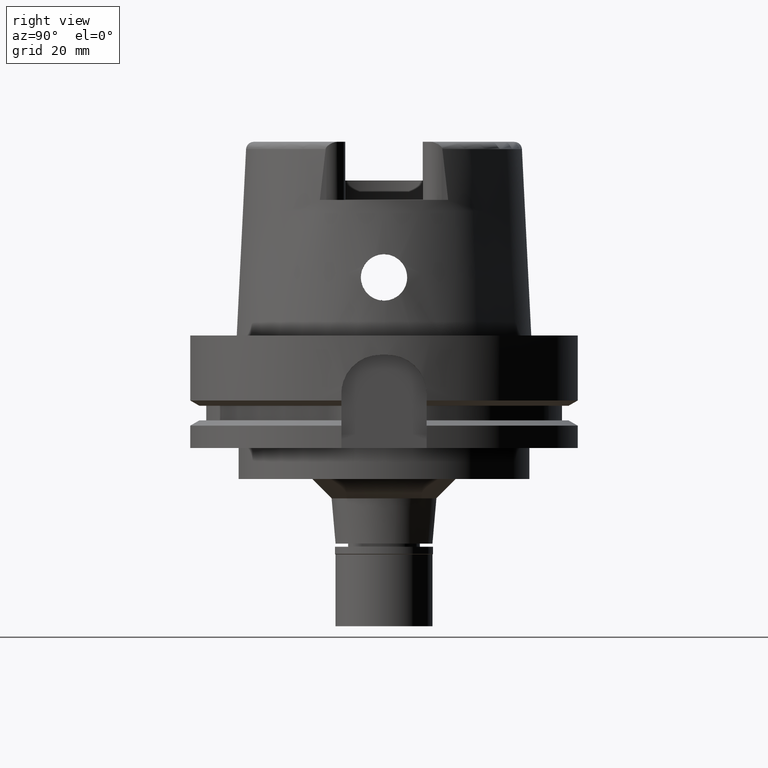
[diagram: clean part render]
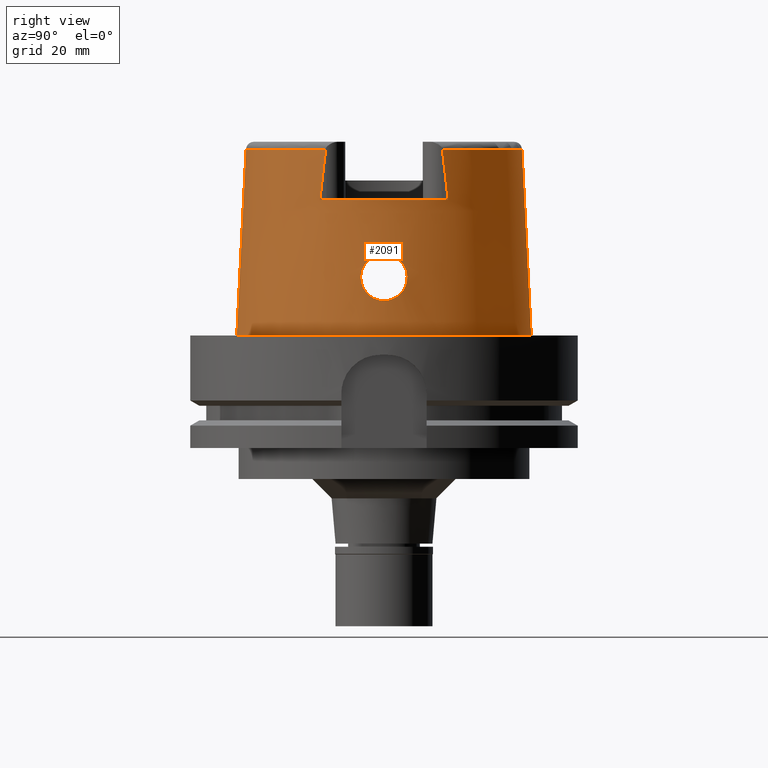
[diagram: same view with one face highlighted and labeled with its STEP entity id]
A machine part, right view. The second image highlights one B-rep face of the part: STEP entity #2091.
In plain terms, the highlighted conical surface has half-angle 2.862 deg.
Its self-contained STEP definition (entity closure, byte-faithful):
#11 = CARTESIAN_POINT ( 'NONE',  ( 36.93363220912266343, 1.522421982830703957, 20.86568823614798163 ) ) ;
#15 = EDGE_CURVE ( 'NONE', #2558, #3792, #5202, .T. ) ;
#26 = AXIS2_PLACEMENT_3D ( 'NONE', #1403, #2337, #3556 ) ;
#34 = CARTESIAN_POINT ( 'NONE',  ( 37.06626367936463851, -5.065606015297276166, 11.78425731385142328 ) ) ;
#45 = CARTESIAN_POINT ( 'NONE',  ( 36.71868864891121831, 5.559254901387802761, 17.25714961341911291 ) ) ;
#64 = CARTESIAN_POINT ( 'NONE',  ( 37.45376518577423042, -2.333079965663379607, 9.472174541642599976 ) ) ;
#74 = CARTESIAN_POINT ( 'NONE',  ( 36.95912333041570719, 5.514420613414209527, 12.63530129115588885 ) ) ;
#93 = CARTESIAN_POINT ( 'NONE',  ( 37.45126644618025580, -2.362967531736562599, 9.484820351221177503 ) ) ;
#105 = CARTESIAN_POINT ( 'NONE',  ( 36.78001657209971853, 4.459030951534494136, 19.01498710540209558 ) ) ;
#116 = AXIS2_PLACEMENT_3D ( 'NONE', #4750, #2186, #4779 ) ;
#136 = CARTESIAN_POINT ( 'NONE',  ( 36.82337584058490165, 5.928613113571710613, 14.05629653315983596 ) ) ;
#249 = DIRECTION ( 'NONE',  ( 0.0000000000000000000, 0.0000000000000000000, -1.000000000000000000 ) ) ;
#268 = CARTESIAN_POINT ( 'NONE',  ( 36.94998175923000616, -1.503990973344999703E-13, 21.00000000000000000 ) ) ;
#302 = CARTESIAN_POINT ( 'NONE',  ( 37.46533897159186921, 2.190248170270504779, 9.413952341805906343 ) ) ;
#315 = CARTESIAN_POINT ( 'NONE',  ( 36.75765343863760393, -5.998799344600148409, 15.12235183670633276 ) ) ;
#327 = CARTESIAN_POINT ( 'NONE',  ( 37.43514613400279245, 2.563790106412909608, 9.566202628577114453 ) ) ;
#328 = DIRECTION ( 'NONE',  ( 0.0000000000000000000, 0.0000000000000000000, -1.000000000000000000 ) ) ;
#342 = CARTESIAN_POINT ( 'NONE',  ( 36.79522537593648224, -4.225185952289158386, 19.26004155151759889 ) ) ;
#368 = CARTESIAN_POINT ( 'NONE',  ( 36.71597072978062926, -5.807668737151709948, 16.55669581157706105 ) ) ;
#409 = CARTESIAN_POINT ( 'NONE',  ( 37.46209156448918520, 2.231315079168445514, 9.430304088446245458 ) ) ;
#431 = CARTESIAN_POINT ( 'NONE',  ( 36.72019455944313648, -5.509082578915881712, 17.37714517520942437 ) ) ;
#444 = CARTESIAN_POINT ( 'NONE',  ( 36.89991126202629346, 2.332422418936255237, 20.52815636143702349 ) ) ;
#459 = CARTESIAN_POINT ( 'NONE',  ( 37.20621781380155113, -4.331168503731348096, 10.84764687306128295 ) ) ;
#472 = CARTESIAN_POINT ( 'NONE',  ( 36.78366853031181449, 4.402498439861827428, 19.07720843571472713 ) ) ;
#475 = EDGE_CURVE ( 'NONE', #2558, #2252, #1142, .T. ) ;
#496 = CARTESIAN_POINT ( 'NONE',  ( 37.44529135817865750, -2.432995199068156644, 9.515122137989015627 ) ) ;
#501 = CARTESIAN_POINT ( 'NONE',  ( 32.25000000000000000, -16.55285457013000183, 35.00000000000000000 ) ) ;
#508 = CARTESIAN_POINT ( 'NONE',  ( 36.74868218491153726, 4.955038268920233691, 18.38905931979483910 ) ) ;
#521 = CARTESIAN_POINT ( 'NONE',  ( 37.55000165825000380, 0.0000000000000000000, 9.000000000000000000 ) ) ;
#528 = CARTESIAN_POINT ( 'NONE',  ( 37.04582165515643766, -5.158697825950686600, 11.93558473823012456 ) ) ;
#539 = CARTESIAN_POINT ( 'NONE',  ( 36.84409336593814288, 3.435021757105638951, 19.92036898884432361 ) ) ;
#546 = CARTESIAN_POINT ( 'NONE',  ( 32.25000000000000000, 15.55558143819621542, 43.94359171039683076 ) ) ;
#557 = CARTESIAN_POINT ( 'NONE',  ( 36.90519221580581188, -5.703764412642750692, 13.13512669049519666 ) ) ;
#568 = CARTESIAN_POINT ( 'NONE',  ( 36.73128792167682377, 5.964829099450134287, 15.75765343368654570 ) ) ;
#573 = CARTESIAN_POINT ( 'NONE',  ( 32.24997259595860299, 15.06456614046549802, 48.09965096924619843 ) ) ;
#618 = VECTOR ( 'NONE', #4135, 1000.000000000000227 ) ;
#657 = CARTESIAN_POINT ( 'NONE',  ( 36.92806047408863179, -5.626638771284506291, 12.91536468764521395 ) ) ;
#747 = CARTESIAN_POINT ( 'NONE',  ( 36.73244334232246899, -5.227832377912167594, 17.95012752319874849 ) ) ;
#776 = CARTESIAN_POINT ( 'NONE',  ( 36.83144480226506090, -3.654988139005703740, 19.76230530686152065 ) ) ;
#790 = CARTESIAN_POINT ( 'NONE',  ( 37.55000165825000380, 0.0000000000000000000, 9.000000000000000000 ) ) ;
#807 = CARTESIAN_POINT ( 'NONE',  ( 36.71942483638947863, -5.533482905169627486, 17.31963883102281798 ) ) ;
#836 = CARTESIAN_POINT ( 'NONE',  ( 36.81744865108248632, -3.882461228376284268, 19.57560021671073969 ) ) ;
#878 = CARTESIAN_POINT ( 'NONE',  ( 37.06340790892218706, 5.078741949340638939, 11.79938486920679885 ) ) ;
#894 = ORIENTED_EDGE ( 'NONE', *, *, #4957, .F. ) ;
#901 = CARTESIAN_POINT ( 'NONE',  ( 37.07113662089325601, -5.042876533999392841, 11.74890877369419329 ) ) ;
#912 = CARTESIAN_POINT ( 'NONE',  ( 37.04080640710736105, 5.180684260487557147, 11.96690155462260563 ) ) ;
#915 = CARTESIAN_POINT ( 'NONE',  ( 32.25000000000000000, 16.55285457013000183, 35.00000000000000000 ) ) ;
#928 = CARTESIAN_POINT ( 'NONE',  ( 37.43992180455036589, -2.493492737195101228, 9.542482954090571567 ) ) ;
#940 = CARTESIAN_POINT ( 'NONE',  ( 36.71738286915432070, 5.614453678922129320, 17.11714514215727689 ) ) ;
#970 = CARTESIAN_POINT ( 'NONE',  ( 36.79045630253106225, 5.982353767830193902, 14.53054033894637342 ) ) ;
#975 = DIRECTION ( 'NONE',  ( 0.0000000000000000000, 0.0000000000000000000, -1.000000000000000000 ) ) ;
#989 = CARTESIAN_POINT ( 'NONE',  ( 36.98351900425925010, -5.422781580894332265, 12.42471093009268657 ) ) ;
#1001 = CARTESIAN_POINT ( 'NONE',  ( 37.22482081938770904, 4.220112609575639162, 10.73494587141025036 ) ) ;
#1131 = CARTESIAN_POINT ( 'NONE',  ( -0.002482252536761000127, -35.59494263424999616, 48.09987853799000135 ) ) ;
#1142 = CIRCLE ( 'NONE', #5006, 35.59494289391000166 ) ;
#1216 = CARTESIAN_POINT ( 'NONE',  ( 37.47167791025621852, 2.107964765286057585, 9.382088859678464843 ) ) ;
#1231 = CARTESIAN_POINT ( 'NONE',  ( 36.85140193091715588, -3.310106363146713360, 20.00433822272744422 ) ) ;
#1244 = CARTESIAN_POINT ( 'NONE',  ( 37.51959850512429284, 1.324355653975685110, 9.144763148519293949 ) ) ;
#1262 = CARTESIAN_POINT ( 'NONE',  ( 36.85061835843583822, -3.323925523284726680, 19.99516460867254963 ) ) ;
#1291 = CARTESIAN_POINT ( 'NONE',  ( 36.85935966623175375, -3.167391246512898828, 20.09638007231325929 ) ) ;
#1303 = CARTESIAN_POINT ( 'NONE',  ( 36.80169770612771174, 4.125147666657124290, 19.36142236284265650 ) ) ;
#1320 = CARTESIAN_POINT ( 'NONE',  ( 36.73177024955116821, -5.950776447743272968, 15.79073326840902958 ) ) ;
#1324 = CARTESIAN_POINT ( 'NONE',  ( 32.25000552016999222, -15.06439822059999933, 48.10004228534999271 ) ) ;
#1331 = CARTESIAN_POINT ( 'NONE',  ( 36.90901622673050753, 5.699655102975222043, 13.07708593357390114 ) ) ;
#1339 = CARTESIAN_POINT ( 'NONE',  ( 32.24997259595860299, 15.06456614046549802, 48.09965096924619843 ) ) ;
#1352 = CARTESIAN_POINT ( 'NONE',  ( 37.01624729913550738, -5.287576518567892236, 12.16253581040972698 ) ) ;
#1362 = CARTESIAN_POINT ( 'NONE',  ( 36.77647169725887011, 5.995475959671896504, 14.76249740475617322 ) ) ;
#1379 = CARTESIAN_POINT ( 'NONE',  ( 37.10058342507578999, -4.903966302775364383, 11.53737477060896310 ) ) ;
#1383 = CARTESIAN_POINT ( 'NONE',  ( 32.25000000000000000, -15.55533875125810184, 43.94468613908227894 ) ) ;
#1390 = CARTESIAN_POINT ( 'NONE',  ( 36.86753934487664708, 3.025841836681682828, 20.18494694466751227 ) ) ;
#1403 = CARTESIAN_POINT ( 'NONE',  ( 0.0000000000000000000, 0.0000000000000000000, 48.09987853799000135 ) ) ;
#1419 = CARTESIAN_POINT ( 'NONE',  ( 37.13283161740791627, 4.743749406786820444, 11.32102043494708532 ) ) ;
#1458 = EDGE_CURVE ( 'NONE', #2443, #3792, #4812, .T. ) ;
#1583 = EDGE_LOOP ( 'NONE', ( #2562, #2029 ) ) ;
#1619 = CARTESIAN_POINT ( 'NONE',  ( 32.25000552016999222, -15.06439822059999933, 48.10004228534999271 ) ) ;
#1621 = CARTESIAN_POINT ( 'NONE',  ( 37.28847205645702445, 3.802868792217108052, 10.35782043555392917 ) ) ;
#1637 = CARTESIAN_POINT ( 'NONE',  ( 36.80450490273268116, -5.971066681328927928, 14.29400181001692793 ) ) ;
#1663 = CARTESIAN_POINT ( 'NONE',  ( 36.94998175923000616, -1.503990973344999703E-13, 21.00000000000000000 ) ) ;
#1691 = CARTESIAN_POINT ( 'NONE',  ( 36.86313359689501112, -3.097383309472527824, 20.13897706543329491 ) ) ;
#1703 = CARTESIAN_POINT ( 'NONE',  ( 37.22751549134217441, 4.203546058178935674, 10.71861537577395040 ) ) ;
#1721 = CARTESIAN_POINT ( 'NONE',  ( 36.84075280117442475, -3.497229841147742047, 19.87933126260659478 ) ) ;
#1750 = CARTESIAN_POINT ( 'NONE',  ( 36.72671786818800399, -5.922211819808825162, 15.98259180939205848 ) ) ;
#1765 = CARTESIAN_POINT ( 'NONE',  ( 37.00763972867672891, 5.322157748709053671, 12.22791941054922304 ) ) ;
#1775 = CARTESIAN_POINT ( 'NONE',  ( 32.25000000000000000, 16.55285457013000183, 35.00000000000000000 ) ) ;
#1785 = CARTESIAN_POINT ( 'NONE',  ( 36.89549690117399194, -5.734725241736811974, 13.23274010388707822 ) ) ;
#1794 = CARTESIAN_POINT ( 'NONE',  ( 36.78811063004863513, 4.334011861514228237, 19.14943034224311802 ) ) ;
#1810 = CARTESIAN_POINT ( 'NONE',  ( 36.86761530054837266, -5.819384269902021067, 13.52490974048823169 ) ) ;
#1819 = CARTESIAN_POINT ( 'NONE',  ( 36.80921795986148481, 5.955693851536801198, 14.24799823532020326 ) ) ;
#1845 = CARTESIAN_POINT ( 'NONE',  ( 36.76846560145128961, 4.638968096063621260, 18.80674691052208658 ) ) ;
#1864 = EDGE_CURVE ( 'NONE', #3175, #4780, #4002, .T. ) ;
#1865 = CARTESIAN_POINT ( 'NONE',  ( 36.85063335782452754, -5.864852783053696506, 13.71878201605220760 ) ) ;
#1872 = VERTEX_POINT ( 'NONE', #521 ) ;
#1877 = CARTESIAN_POINT ( 'NONE',  ( 36.96443656765242736, 5.494368606498515994, 12.58907729257445673 ) ) ;
#1957 = CARTESIAN_POINT ( 'NONE',  ( 37.07440322339900263, -5.027576097927243026, 11.72529749771448770 ) ) ;
#2029 = ORIENTED_EDGE ( 'NONE', *, *, #3600, .F. ) ;
#2037 = CARTESIAN_POINT ( 'NONE',  ( 37.46068311763726655, 2.248898502662751486, 9.437402090658185472 ) ) ;
#2051 = CARTESIAN_POINT ( 'NONE',  ( 36.75992716028058283, -5.999579697872247763, 15.07487988781882038 ) ) ;
#2063 = DIRECTION ( 'NONE',  ( 0.0000000000000000000, 1.000000000000000000, 0.0000000000000000000 ) ) ;
#2075 = CARTESIAN_POINT ( 'NONE',  ( 36.77303724469233970, -4.553503825884407163, 18.93179029564945992 ) ) ;
#2091 = ADVANCED_FACE ( 'NONE', ( #2413, #5415 ), #4461, .T. ) ;
#2134 = CARTESIAN_POINT ( 'NONE',  ( 36.73760508957626314, -5.132522189325178452, 18.11373577851743732 ) ) ;
#2136 = ORIENTED_EDGE ( 'NONE', *, *, #475, .T. ) ;
#2163 = CARTESIAN_POINT ( 'NONE',  ( 36.79815431489202382, -4.181488795505773126, 19.30304589036198593 ) ) ;
#2170 = EDGE_LOOP ( 'NONE', ( #894, #2780, #3087, #5264, #3959, #2136, #5333, #3587 ) ) ;
#2172 = EDGE_CURVE ( 'NONE', #4821, #2252, #3616, .T. ) ;
#2175 = CARTESIAN_POINT ( 'NONE',  ( 36.71770843892101510, 5.806166051201119060, 16.52570958679601532 ) ) ;
#2186 = DIRECTION ( 'NONE',  ( 0.0000000000000000000, 0.0000000000000000000, 1.000000000000000000 ) ) ;
#2190 = CARTESIAN_POINT ( 'NONE',  ( 37.02773192500026767, -5.238623073265898711, 12.07287770662173720 ) ) ;
#2207 = CARTESIAN_POINT ( 'NONE',  ( 36.71881809149034837, 5.554517906380437964, 17.26878166945640558 ) ) ;
#2229 = CARTESIAN_POINT ( 'NONE',  ( 36.94624556771293555, -5.561877793994947972, 12.74932400736074278 ) ) ;
#2239 = CARTESIAN_POINT ( 'NONE',  ( 36.81089274197680083, 3.979569199766779253, 19.49464985097478475 ) ) ;
#2252 = VERTEX_POINT ( 'NONE', #1339 ) ;
#2263 = CARTESIAN_POINT ( 'NONE',  ( 36.96400091796579801, -5.497395544571951120, 12.59037142622155869 ) ) ;
#2273 = CARTESIAN_POINT ( 'NONE',  ( 36.88055506783032200, 2.763886986596148621, 20.32642254568974494 ) ) ;
#2291 = CARTESIAN_POINT ( 'NONE',  ( 37.27064475271989608, -3.950619873988412856, 10.46118248926763172 ) ) ;
#2303 = CARTESIAN_POINT ( 'NONE',  ( 36.71650714953373296, 5.721071497469291778, 16.81085046599240229 ) ) ;
#2337 = DIRECTION ( 'NONE',  ( 0.0000000000000000000, 0.0000000000000000000, -1.000000000000000000 ) ) ;
#2365 = B_SPLINE_CURVE_WITH_KNOTS ( 'NONE', 3,
 ( #1324, #1383, #2654, #501 ),
 .UNSPECIFIED., .F., .F.,
 ( 4, 4 ),
 ( 0.0000000000000000000, 1.000000000000000000 ),
 .UNSPECIFIED. ) ;
#2375 = CARTESIAN_POINT ( 'NONE',  ( 36.94998175922999906, 0.7283764636057390440, 21.00000000000000355 ) ) ;
#2413 = FACE_OUTER_BOUND ( 'NONE', #2170, .T. ) ;
#2443 = VERTEX_POINT ( 'NONE', #4915 ) ;
#2462 = CARTESIAN_POINT ( 'NONE',  ( 37.48373228542131841, 1.942848029906976581, 9.321713245723216801 ) ) ;
#2480 = CARTESIAN_POINT ( 'NONE',  ( 36.74699686259022968, -5.990504121878603705, 15.36027915551220602 ) ) ;
#2493 = CARTESIAN_POINT ( 'NONE',  ( 37.51009751977251483, 1.515316271329530728, 9.191114411644974780 ) ) ;
#2509 = CARTESIAN_POINT ( 'NONE',  ( 36.87046040258753266, -2.959032776675881493, 20.22068957188140459 ) ) ;
#2521 = CARTESIAN_POINT ( 'NONE',  ( 37.23005694141161825, 4.187860562909334838, 10.70323393895467667 ) ) ;
#2547 = CARTESIAN_POINT ( 'NONE',  ( 37.49299574613932151, 1.800541574305924319, 9.275676124258460220 ) ) ;
#2558 = VERTEX_POINT ( 'NONE', #2908 ) ;
#2562 = ORIENTED_EDGE ( 'NONE', *, *, #2623, .F. ) ;
#2582 = CARTESIAN_POINT ( 'NONE',  ( 1.065814103639999922E-14, -35.59494289391000166, 48.09987853799000135 ) ) ;
#2606 = CARTESIAN_POINT ( 'NONE',  ( 37.10959167827399341, 4.861615886763582139, 11.47831745141293069 ) ) ;
#2622 = CARTESIAN_POINT ( 'NONE',  ( 0.002482252536764999965, 35.59494263424999616, 48.09987853799000135 ) ) ;
#2623 = EDGE_CURVE ( 'NONE', #1872, #4182, #3033, .T. ) ;
#2624 = CARTESIAN_POINT ( 'NONE',  ( 37.19601805353671864, -4.390445328310041084, 10.90998552344615469 ) ) ;
#2635 = CARTESIAN_POINT ( 'NONE',  ( 36.78461494404670873, 5.988914658133977831, 14.62388953671449343 ) ) ;
#2650 = CARTESIAN_POINT ( 'NONE',  ( 37.21059328177076253, -4.305519365526615516, 10.82116595152367466 ) ) ;
#2654 = CARTESIAN_POINT ( 'NONE',  ( 32.25000000000000000, -16.05145952528143383, 39.57800537729894330 ) ) ;
#2665 = CARTESIAN_POINT ( 'NONE',  ( 36.87079981026467834, 5.816233586629762087, 13.47437042480084912 ) ) ;
#2689 = CARTESIAN_POINT ( 'NONE',  ( 36.99124028303436518, 5.390034592700625460, 12.36086071650830043 ) ) ;
#2719 = CARTESIAN_POINT ( 'NONE',  ( 36.76534902764718993, 5.999955236818629523, 14.96677934305014901 ) ) ;
#2780 = ORIENTED_EDGE ( 'NONE', *, *, #1864, .T. ) ;
#2806 = CARTESIAN_POINT ( 'NONE',  ( 37.12358788292917922, -4.787799278460241226, 11.37844825430384077 ) ) ;
#2908 = CARTESIAN_POINT ( 'NONE',  ( 0.0000000000000000000, 35.59494289391000166, 48.09987853799000135 ) ) ;
#2931 = CARTESIAN_POINT ( 'NONE',  ( 36.90177345254360119, -2.287703710583636418, 20.54675019041793149 ) ) ;
#2943 = CARTESIAN_POINT ( 'NONE',  ( 37.25725955453309979, 4.014426834774912578, 10.54045339591222863 ) ) ;
#2957 = CARTESIAN_POINT ( 'NONE',  ( 36.72452570252664827, -5.395325370722200198, 17.62645808792378332 ) ) ;
#2983 = CARTESIAN_POINT ( 'NONE',  ( 36.85275201431908698, -3.286174381754713547, 20.02008596694263076 ) ) ;
#3011 = CARTESIAN_POINT ( 'NONE',  ( 36.91481390917600436, -1.950704608086923697, 20.67570202813412550 ) ) ;
#3022 = CARTESIAN_POINT ( 'NONE',  ( 36.85842391940360585, 3.193799473544657985, 20.08303715857616112 ) ) ;
#3033 = B_SPLINE_CURVE_WITH_KNOTS ( 'NONE', 3,
 ( #790, #4593, #5100, #1244, #2493, #2547, #2462, #1216, #302, #409, #2037, #3851, #4247, #327, #3818, #3735, #5468, #1621, #5553, #2943, #5040, #3763, #2521, #1703, #5185, #1001, #3135, #3516, #1419, #2606, #878, #912, #1765, #2689, #4797, #1877, #74, #3939, #1331, #2665, #136, #1819, #970, #2635, #1362, #3079, #4340, #3111, #2719, #4430, #568, #3052, #2175, #2303, #3911, #940, #4372, #4768, #45, #2207, #5274, #3460, #3878, #508, #4827, #1845, #4856, #105, #472, #1794, #3486, #3575, #4003, #1303, #2239, #3547, #5241, #5214, #539, #3022, #1390, #2273, #4401, #4735, #3970, #4309, #444, #11, #2375, #268 ),
 .UNSPECIFIED., .F., .F.,
 ( 4, 2, 2, 1, 1, 1, 1, 2, 2, 2, 2, 2, 1, 1, 1, 2, 2, 2, 2, 2, 1, 1, 2, 2, 2, 2, 2, 1, 2, 2, 2, 2, 1, 1, 1, 1, 2, 2, 2, 2, 2, 1, 1, 2, 2, 2, 2, 2, 2, 1, 1, 2, 2, 4 ),
 ( 0.0000000000000000000, 0.06249999999999146516, 0.09374999999998714917, 0.1093749999999849565, 0.1171874999999838740, 0.1210937499999834160, 0.1230468749999832079, 0.1240234374999830969, 0.1249999999999829858, 0.1874999999999775457, 0.2187499999999747979, 0.2343749999999734379, 0.2421874999999728273, 0.2460937499999726052, 0.2480468749999724665, 0.2490234374999723832, 0.2499999999999722999, 0.2812499999999704126, 0.3124999999999685252, 0.3437499999999666378, 0.3593749999999656941, 0.3671874999999654166, 0.3710937499999652500, 0.3749999999999650835, 0.4374999999999654166, 0.4687499999999655276, 0.4843749999999655831, 0.4921874999999658051, 0.4960937499999659162, 0.4999999999999659162, 0.5624999999999688027, 0.5937499999999700240, 0.6093749999999702460, 0.6171874999999702460, 0.6210937499999701350, 0.6230468749999699130, 0.6240234374999696909, 0.6249999999999695799, 0.6874999999999742428, 0.7187499999999763522, 0.7343749999999772404, 0.7421874999999777955, 0.7460937499999780176, 0.7480468749999782396, 0.7499999999999783507, 0.7812499999999806821, 0.7968749999999816813, 0.8124999999999826805, 0.8437499999999849010, 0.8593749999999861222, 0.8671874999999866773, 0.8710937499999871214, 0.8749999999999874545, 1.000000000000000000 ),
 .UNSPECIFIED. ) ;
#3042 = CARTESIAN_POINT ( 'NONE',  ( 37.39624555107663895, -2.943933633570180231, 9.768575718043079448 ) ) ;
#3052 = CARTESIAN_POINT ( 'NONE',  ( 36.71999159056818485, 5.853079173732234963, 16.33408036258240514 ) ) ;
#3070 = CARTESIAN_POINT ( 'NONE',  ( 37.42103109394845717, -2.696850512874288341, 9.639437191358705803 ) ) ;
#3079 = CARTESIAN_POINT ( 'NONE',  ( 36.77255477159958019, 5.997936662433710708, 14.83144767608432346 ) ) ;
#3087 = ORIENTED_EDGE ( 'NONE', *, *, #3326, .T. ) ;
#3094 = CARTESIAN_POINT ( 'NONE',  ( 36.94542271954726687, -5.564860365504148199, 12.75670502920404203 ) ) ;
#3111 = CARTESIAN_POINT ( 'NONE',  ( 36.76646487241576722, 5.999793778901744368, 14.94530537451083596 ) ) ;
#3135 = CARTESIAN_POINT ( 'NONE',  ( 37.20148504798339673, 4.362959921170769917, 10.87657547647203593 ) ) ;
#3153 = CARTESIAN_POINT ( 'NONE',  ( 37.05508221807424007, -5.117111329586374602, 11.86623841263222090 ) ) ;
#3175 = VERTEX_POINT ( 'NONE', #1619 ) ;
#3184 = VECTOR ( 'NONE', #3893, 1000.000000000000227 ) ;
#3247 = DIRECTION ( 'NONE',  ( 0.0000000000000000000, -1.000000000000000000, 0.0000000000000000000 ) ) ;
#3278 = AXIS2_PLACEMENT_3D ( 'NONE', #4118, #249, #3247 ) ;
#3326 = EDGE_CURVE ( 'NONE', #4780, #2443, #4912, .T. ) ;
#3337 = CARTESIAN_POINT ( 'NONE',  ( 36.72630462458296563, -5.355377902969110870, 17.70708301683944441 ) ) ;
#3343 = CARTESIAN_POINT ( 'NONE',  ( 36.94998175923000616, -1.503990973344999703E-13, 21.00000000000000000 ) ) ;
#3364 = B_SPLINE_CURVE_WITH_KNOTS ( 'NONE', 3,
 ( #1663, #4664, #3811, #4639, #5091, #3838, #3011, #4726, #5546, #3418, #4694, #3392, #2931, #3367, #5570, #4237, #2509, #1691, #1291, #5116, #2983, #1231, #1262, #1721, #776, #836, #3449, #4213, #2163, #5057, #342, #5175, #2075, #5511, #2134, #747, #3337, #2957, #5143, #4298, #431, #3867, #5593, #807, #3779, #368, #1750, #1320, #4608, #2480, #4186, #315, #2051, #3753, #5482, #1637, #1865, #1810, #1785, #557, #3531, #657, #3506, #4090, #3476, #3094, #2229, #2263, #989, #1352, #2190, #528, #3153, #34, #901, #1957, #3561, #1379, #2806, #4785, #3656, #2624, #459, #2650, #4814, #4875, #2291, #4328, #5388, #3042, #3070, #3929, #928, #496, #93, #64, #4756, #4420, #3960, #5204, #5231 ),
 .UNSPECIFIED., .F., .F.,
 ( 4, 2, 2, 1, 1, 1, 1, 2, 2, 2, 2, 1, 1, 2, 2, 2, 1, 1, 1, 2, 2, 2, 2, 2, 1, 1, 2, 2, 2, 2, 1, 1, 2, 2, 2, 2, 2, 1, 1, 1, 2, 2, 2, 2, 1, 1, 2, 2, 2, 1, 1, 1, 2, 2, 2, 2, 2, 1, 1, 2, 2, 4 ),
 ( 0.0000000000000000000, 0.06249999999998595568, 0.09374999999997898903, 0.1093749999999754502, 0.1171874999999737155, 0.1210937499999728550, 0.1230468749999724942, 0.1240234374999722999, 0.1249999999999721056, 0.1562499999999694134, 0.1718749999999680533, 0.1796874999999673872, 0.1835937499999670541, 0.1855468749999669154, 0.1874999999999667766, 0.2187499999999633071, 0.2343749999999615030, 0.2421874999999604205, 0.2460937499999598377, 0.2480468749999596711, 0.2499999999999595324, 0.3124999999999449884, 0.3437499999999376610, 0.3593749999999339972, 0.3671874999999321654, 0.3710937499999311662, 0.3730468749999309441, 0.3749999999999307221, 0.4374999999999300004, 0.4687499999999298894, 0.4843749999999300004, 0.4921874999999301115, 0.4960937499999301670, 0.4999999999999301670, 0.5624999999999280575, 0.5937499999999270583, 0.6093749999999267253, 0.6171874999999266143, 0.6210937499999265032, 0.6230468749999266143, 0.6240234374999266143, 0.6249999999999266143, 0.6562499999999291678, 0.6718749999999302780, 0.6796874999999308331, 0.6835937499999311662, 0.6855468749999314992, 0.6874999999999318323, 0.7187499999999371614, 0.7343749999999398259, 0.7421874999999411582, 0.7460937499999419353, 0.7480468749999423794, 0.7499999999999428235, 0.8124999999999560352, 0.8437499999999626965, 0.8593749999999660272, 0.8671874999999676925, 0.8710937499999685807, 0.8730468749999690248, 0.8749999999999694689, 1.000000000000000000 ),
 .UNSPECIFIED. ) ;
#3367 = CARTESIAN_POINT ( 'NONE',  ( 36.89534651267749865, -2.443032981843361817, 20.48253178602988456 ) ) ;
#3392 = CARTESIAN_POINT ( 'NONE',  ( 36.90208191059435450, -2.280224176207230169, 20.54983072517959997 ) ) ;
#3418 = CARTESIAN_POINT ( 'NONE',  ( 36.90332960509533677, -2.249750191693839163, 20.56227715081001861 ) ) ;
#3449 = CARTESIAN_POINT ( 'NONE',  ( 36.81044203728659880, -3.993907960193134876, 19.47945788895431107 ) ) ;
#3460 = CARTESIAN_POINT ( 'NONE',  ( 36.72238945086053974, 5.428360971623982678, 17.57583175883529947 ) ) ;
#3476 = CARTESIAN_POINT ( 'NONE',  ( 36.94406653493074089, -5.569762583942237555, 12.76890431131371884 ) ) ;
#3486 = CARTESIAN_POINT ( 'NONE',  ( 36.79005327604067332, 4.304112747035613751, 19.18028941485433592 ) ) ;
#3506 = CARTESIAN_POINT ( 'NONE',  ( 36.93733422466240768, -5.593919296386983930, 12.82991491117913441 ) ) ;
#3516 = CARTESIAN_POINT ( 'NONE',  ( 37.17870291114176950, 4.494775676386168151, 11.02067333667685389 ) ) ;
#3531 = CARTESIAN_POINT ( 'NONE',  ( 36.92033735938856154, -5.653058042732282296, 12.98863106334064632 ) ) ;
#3547 = CARTESIAN_POINT ( 'NONE',  ( 36.82494186683332060, 3.751899682974277006, 19.68326390923547109 ) ) ;
#3556 = DIRECTION ( 'NONE',  ( 0.9060280460804950309, -0.4232176505245974218, 0.0000000000000000000 ) ) ;
#3561 = CARTESIAN_POINT ( 'NONE',  ( 37.07626637332585773, -5.018809087915384382, 11.71188407280238053 ) ) ;
#3575 = CARTESIAN_POINT ( 'NONE',  ( 36.79135701536026204, 4.284057727511431324, 19.20083985870530086 ) ) ;
#3580 = DIRECTION ( 'NONE',  ( 0.8896561898442558736, 0.4566309931134779343, 0.0000000000000000000 ) ) ;
#3587 = ORIENTED_EDGE ( 'NONE', *, *, #4052, .T. ) ;
#3600 = EDGE_CURVE ( 'NONE', #4182, #1872, #3364, .T. ) ;
#3616 = B_SPLINE_CURVE_WITH_KNOTS ( 'NONE', 3,
 ( #1775, #5220, #546, #573 ),
 .UNSPECIFIED., .F., .F.,
 ( 4, 4 ),
 ( 0.0000000000000000000, 1.000000000000000000 ),
 .UNSPECIFIED. ) ;
#3656 = CARTESIAN_POINT ( 'NONE',  ( 37.17565719299398097, -4.506687492948773688, 11.03683390175013379 ) ) ;
#3735 = CARTESIAN_POINT ( 'NONE',  ( 37.34509692687669258, 3.379918949133818629, 10.03867942837833915 ) ) ;
#3753 = CARTESIAN_POINT ( 'NONE',  ( 36.76115066481344229, -5.999834486749699103, 15.04988775196836492 ) ) ;
#3763 = CARTESIAN_POINT ( 'NONE',  ( 37.23594734222407254, 4.151207461032393020, 10.66768411654290638 ) ) ;
#3773 = VERTEX_POINT ( 'NONE', #4739 ) ;
#3779 = CARTESIAN_POINT ( 'NONE',  ( 36.71468597841860060, -5.692728770439267727, 16.93752010990252899 ) ) ;
#3792 = VERTEX_POINT ( 'NONE', #4346 ) ;
#3811 = CARTESIAN_POINT ( 'NONE',  ( 36.94594817069334169, -0.7394426283799175881, 20.96715299579523872 ) ) ;
#3818 = CARTESIAN_POINT ( 'NONE',  ( 37.40376655789496851, 2.882511147975072241, 9.723131122508357649 ) ) ;
#3838 = CARTESIAN_POINT ( 'NONE',  ( 36.91972984520506884, -1.804143824991490952, 20.72323490851377414 ) ) ;
#3851 = CARTESIAN_POINT ( 'NONE',  ( 37.45974044174689510, 2.260617005423132486, 9.442154128523851497 ) ) ;
#3867 = CARTESIAN_POINT ( 'NONE',  ( 36.71979060403115369, -5.521715252286732323, 17.34750410216387451 ) ) ;
#3878 = CARTESIAN_POINT ( 'NONE',  ( 36.73025172467523447, 5.269838896868245470, 17.89504875248475813 ) ) ;
#3893 = DIRECTION ( 'NONE',  ( -5.154182075159067383E-05, 0.04993927430816067631, -0.9987522546783135224 ) ) ;
#3897 = CIRCLE ( 'NONE', #4175, 36.24995854370000359 ) ;
#3911 = CARTESIAN_POINT ( 'NONE',  ( 36.71646236436099997, 5.674845435232372282, 16.95284387629023470 ) ) ;
#3929 = CARTESIAN_POINT ( 'NONE',  ( 37.42885196445791252, -2.615053792832171986, 9.599121644774735174 ) ) ;
#3939 = CARTESIAN_POINT ( 'NONE',  ( 36.95663413319717705, 5.523723643922099136, 12.65709698151792928 ) ) ;
#3959 = ORIENTED_EDGE ( 'NONE', *, *, #15, .F. ) ;
#3960 = CARTESIAN_POINT ( 'NONE',  ( 37.51901730773144550, -1.536513078944951705, 9.142535336822906089 ) ) ;
#3970 = CARTESIAN_POINT ( 'NONE',  ( 36.89699857104947256, 2.401089717501679655, 20.49867333459450336 ) ) ;
#4002 = CIRCLE ( 'NONE', #26, 35.59494289391000166 ) ;
#4003 = CARTESIAN_POINT ( 'NONE',  ( 36.79210971838841715, 4.272485975770432098, 19.21260196766942130 ) ) ;
#4052 = EDGE_CURVE ( 'NONE', #4821, #3773, #3897, .T. ) ;
#4090 = CARTESIAN_POINT ( 'NONE',  ( 36.94203696247185320, -5.577081572622533123, 12.78720470289137801 ) ) ;
#4118 = CARTESIAN_POINT ( 'NONE',  ( 0.0000000000000000000, 0.0000000000000000000, 24.04993926899999934 ) ) ;
#4135 = DIRECTION ( 'NONE',  ( 5.154182075151068004E-05, -0.04993927430816067631, -0.9987522546783135224 ) ) ;
#4175 = AXIS2_PLACEMENT_3D ( 'NONE', #5306, #975, #3580 ) ;
#4182 = VERTEX_POINT ( 'NONE', #3343 ) ;
#4186 = CARTESIAN_POINT ( 'NONE',  ( 36.75431176251193932, -5.997205141556125163, 15.19361812813500556 ) ) ;
#4198 = CARTESIAN_POINT ( 'NONE',  ( 0.0000000000000000000, 0.0000000000000000000, 48.09987853799000135 ) ) ;
#4213 = CARTESIAN_POINT ( 'NONE',  ( 36.80225271266657217, -4.119687560050126152, 19.36261212314723679 ) ) ;
#4237 = CARTESIAN_POINT ( 'NONE',  ( 36.87505019887051816, -2.869024638896019219, 20.27052323375179910 ) ) ;
#4247 = CARTESIAN_POINT ( 'NONE',  ( 37.45916166863649721, 2.267775735124466063, 9.445072689271142963 ) ) ;
#4298 = CARTESIAN_POINT ( 'NONE',  ( 36.72122483552421812, -5.478848419131719716, 17.44653103901095292 ) ) ;
#4309 = CARTESIAN_POINT ( 'NONE',  ( 36.89897611209210027, 2.354626395590934784, 20.51872945606679366 ) ) ;
#4328 = CARTESIAN_POINT ( 'NONE',  ( 37.31780341087936392, -3.613371013129176301, 10.19339001031687708 ) ) ;
#4340 = CARTESIAN_POINT ( 'NONE',  ( 36.76886989254236937, 5.999206997527173790, 14.89983866900612419 ) ) ;
#4346 = CARTESIAN_POINT ( 'NONE',  ( 0.0000000000000000000, 38.00001658251999714, 1.023181539494999863E-12 ) ) ;
#4372 = CARTESIAN_POINT ( 'NONE',  ( 36.71808631009137258, 5.582641635583287076, 17.19891203024386783 ) ) ;
#4401 = CARTESIAN_POINT ( 'NONE',  ( 36.88689857549319129, 2.630408495568902438, 20.39431299704045841 ) ) ;
#4420 = CARTESIAN_POINT ( 'NONE',  ( 37.45608034574059531, -2.305154355925967735, 9.460466882825409485 ) ) ;
#4430 = CARTESIAN_POINT ( 'NONE',  ( 36.74474797730529474, 6.000590491508877022, 15.37138451412860718 ) ) ;
#4461 = CONICAL_SURFACE ( 'NONE', #3278, 36.79747973821000073, 0.04996004983832824653 ) ;
#4593 = CARTESIAN_POINT ( 'NONE',  ( 37.55000165824999669, 0.3719199995697518024, 9.000000000000001776 ) ) ;
#4608 = CARTESIAN_POINT ( 'NONE',  ( 36.74155382443704099, -5.979597707101627968, 15.50364781288236671 ) ) ;
#4639 = CARTESIAN_POINT ( 'NONE',  ( 36.93384740508332698, -1.317072400938367194, 20.85693971794654189 ) ) ;
#4664 = CARTESIAN_POINT ( 'NONE',  ( 36.94998175922999195, -0.3621124612745620919, 20.99999999999999645 ) ) ;
#4694 = CARTESIAN_POINT ( 'NONE',  ( 36.90258217011013642, -2.268035458144492367, 20.55482299740566177 ) ) ;
#4726 = CARTESIAN_POINT ( 'NONE',  ( 36.90841688985616287, -2.121660681418107597, 20.61278405526751101 ) ) ;
#4735 = CARTESIAN_POINT ( 'NONE',  ( 36.89401171525873480, 2.470497248883360086, 20.46819020592631588 ) ) ;
#4739 = CARTESIAN_POINT ( 'NONE',  ( 32.25000000000000000, -16.55285457013000183, 35.00000000000000000 ) ) ;
#4750 = CARTESIAN_POINT ( 'NONE',  ( 0.0000000000000000000, 0.0000000000000000000, 1.023181539494999863E-12 ) ) ;
#4756 = CARTESIAN_POINT ( 'NONE',  ( 37.45541723163538705, -2.313183181754573603, 9.463819006581179138 ) ) ;
#4768 = CARTESIAN_POINT ( 'NONE',  ( 36.71849882769498663, 5.566331532481034294, 17.23969398082855164 ) ) ;
#4779 = DIRECTION ( 'NONE',  ( 0.0000000000000000000, -1.000000000000000000, 0.0000000000000000000 ) ) ;
#4780 = VERTEX_POINT ( 'NONE', #2582 ) ;
#4785 = CARTESIAN_POINT ( 'NONE',  ( 37.15827130107765441, -4.602270020986942711, 11.14918509944716973 ) ) ;
#4797 = CARTESIAN_POINT ( 'NONE',  ( 36.97242941020409290, 5.463892442939902061, 12.52001956725503717 ) ) ;
#4812 = CIRCLE ( 'NONE', #116, 38.00001658251999714 ) ;
#4814 = CARTESIAN_POINT ( 'NONE',  ( 37.21351118089277321, -4.288365866208072141, 10.80356470213453335 ) ) ;
#4821 = VERTEX_POINT ( 'NONE', #915 ) ;
#4827 = CARTESIAN_POINT ( 'NONE',  ( 36.75593184657601142, 4.837271092425768693, 18.55614911479319318 ) ) ;
#4856 = CARTESIAN_POINT ( 'NONE',  ( 36.77292006347278175, 4.569261539985615350, 18.89026514679386892 ) ) ;
#4875 = CARTESIAN_POINT ( 'NONE',  ( 37.21473626410386970, -4.281147403759350212, 10.79619454685002111 ) ) ;
#4912 = LINE ( 'NONE', #1131, #618 ) ;
#4915 = CARTESIAN_POINT ( 'NONE',  ( 0.0000000000000000000, -38.00001658251999714, 6.892264536873000076E-13 ) ) ;
#4957 = EDGE_CURVE ( 'NONE', #3175, #3773, #2365, .T. ) ;
#5006 = AXIS2_PLACEMENT_3D ( 'NONE', #4198, #328, #2063 ) ;
#5040 = CARTESIAN_POINT ( 'NONE',  ( 37.24756954645052787, 4.077704795139434957, 10.59793840060687842 ) ) ;
#5057 = CARTESIAN_POINT ( 'NONE',  ( 36.79639705824626361, -4.207738787173114225, 19.27727537703583849 ) ) ;
#5091 = CARTESIAN_POINT ( 'NONE',  ( 36.92880541941254080, -1.511506179711092912, 20.81005680745358077 ) ) ;
#5100 = CARTESIAN_POINT ( 'NONE',  ( 37.54240086996856718, 0.7522276141771103708, 9.034681939989328114 ) ) ;
#5116 = CARTESIAN_POINT ( 'NONE',  ( 36.85476332344485684, -3.250359055397013641, 20.04346898256860499 ) ) ;
#5143 = CARTESIAN_POINT ( 'NONE',  ( 36.72225829522747631, -5.451612921074371343, 17.50636610347923039 ) ) ;
#5175 = CARTESIAN_POINT ( 'NONE',  ( 36.79471018249891756, -4.232836518329319730, 19.25244445571748031 ) ) ;
#5185 = CARTESIAN_POINT ( 'NONE',  ( 37.22581741516732734, 4.213997732880190306, 10.72890214686299792 ) ) ;
#5202 = LINE ( 'NONE', #2622, #3184 ) ;
#5204 = CARTESIAN_POINT ( 'NONE',  ( 37.55000165825000380, -0.7497943695691556831, 9.000000000000000000 ) ) ;
#5214 = CARTESIAN_POINT ( 'NONE',  ( 36.83920480092556460, 3.516671638611059691, 19.86237932095078307 ) ) ;
#5220 = CARTESIAN_POINT ( 'NONE',  ( 32.25000000000000000, 16.05167221854710746, 39.57715424365749612 ) ) ;
#5231 = CARTESIAN_POINT ( 'NONE',  ( 37.55000165825000380, 0.0000000000000000000, 9.000000000000000000 ) ) ;
#5241 = CARTESIAN_POINT ( 'NONE',  ( 36.82966767029930111, 3.674460547484185824, 19.74426514431933910 ) ) ;
#5264 = ORIENTED_EDGE ( 'NONE', *, *, #1458, .T. ) ;
#5274 = CARTESIAN_POINT ( 'NONE',  ( 36.71889816462607570, 5.551648785910615835, 17.27579011844065704 ) ) ;
#5306 = CARTESIAN_POINT ( 'NONE',  ( 0.0000000000000000000, 0.0000000000000000000, 35.00000000000000000 ) ) ;
#5333 = ORIENTED_EDGE ( 'NONE', *, *, #2172, .F. ) ;
#5388 = CARTESIAN_POINT ( 'NONE',  ( 37.37795794737078836, -3.110936394474253852, 9.865600116138548259 ) ) ;
#5415 = FACE_BOUND ( 'NONE', #1583, .T. ) ;
#5468 = CARTESIAN_POINT ( 'NONE',  ( 37.32360700539446441, 3.548818591428605895, 10.15722649273696732 ) ) ;
#5482 = CARTESIAN_POINT ( 'NONE',  ( 36.78017576344435469, -6.001579344770362923, 14.66875182653777188 ) ) ;
#5511 = CARTESIAN_POINT ( 'NONE',  ( 36.75629813762004261, -4.812524503103561280, 18.60446195657098301 ) ) ;
#5546 = CARTESIAN_POINT ( 'NONE',  ( 36.90505294004141490, -2.207070223543163845, 20.57943080949769765 ) ) ;
#5553 = CARTESIAN_POINT ( 'NONE',  ( 37.27627706235887928, 3.887659589439392160, 10.42847751620898755 ) ) ;
#5570 = CARTESIAN_POINT ( 'NONE',  ( 36.88793536518354443, -2.606994377751784331, 20.40762891282402336 ) ) ;
#5593 = CARTESIAN_POINT ( 'NONE',  ( 36.71952965408533487, -5.530065441721353281, 17.32776524746190461 ) ) ;